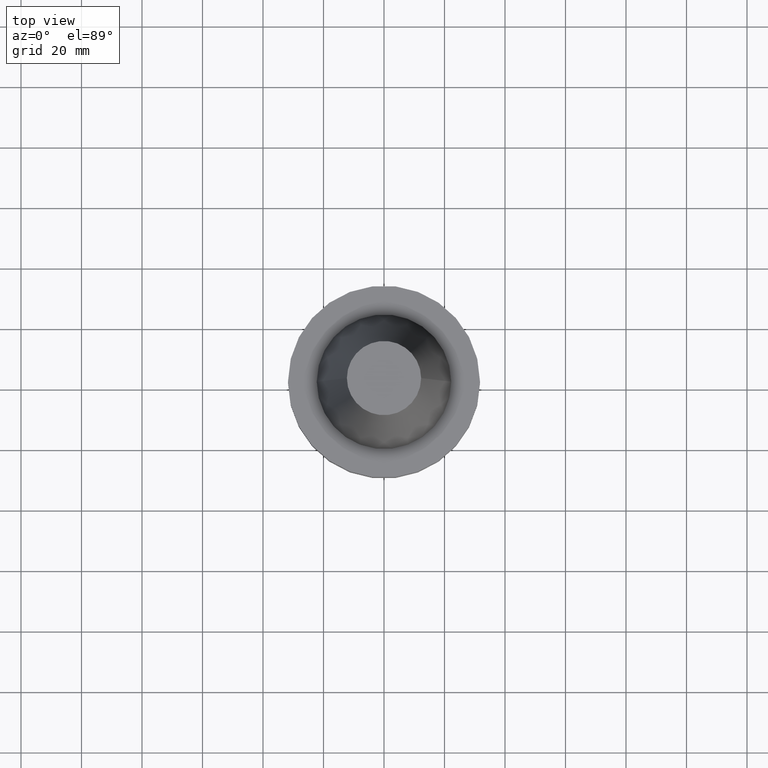
[diagram: clean part render]
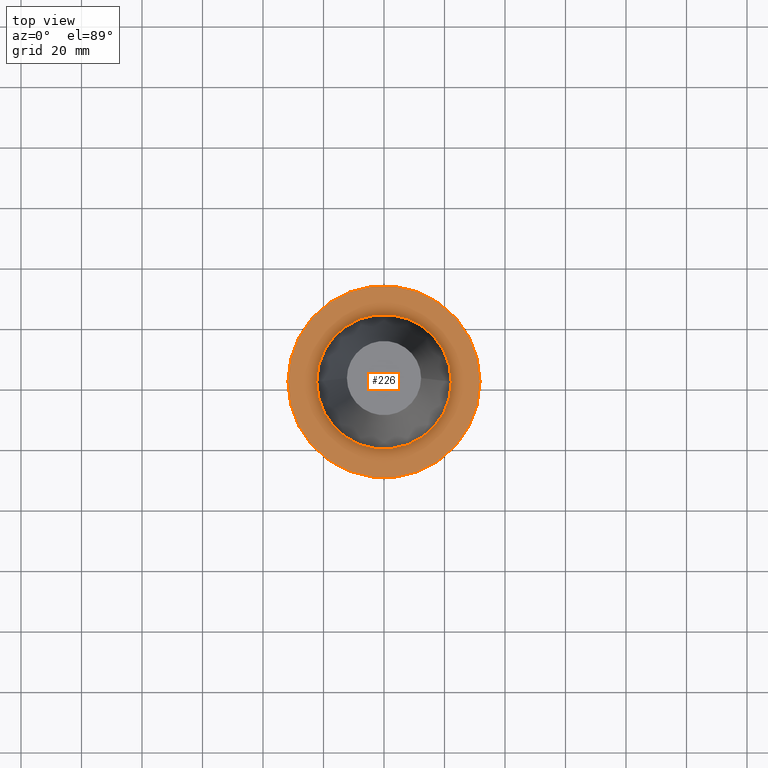
[diagram: same view with one face highlighted and labeled with its STEP entity id]
A machine part, top view. The second image highlights one B-rep face of the part: STEP entity #226.
In plain terms, the highlighted planar face has unit normal (0, 0, -1).
Its self-contained STEP definition (entity closure, byte-faithful):
#7 = CIRCLE ( 'NONE', #724, 31.75000000000000000 ) ;
#30 = VERTEX_POINT ( 'NONE', #948 ) ;
#39 = DIRECTION ( 'NONE',  ( -0.000000000000000000, -0.000000000000000000, 1.000000000000000000 ) ) ;
#40 = CIRCLE ( 'NONE', #435, 22.22500000000000142 ) ;
#41 = ORIENTED_EDGE ( 'NONE', *, *, #348, .F. ) ;
#50 = FACE_OUTER_BOUND ( 'NONE', #142, .T. ) ;
#54 = CARTESIAN_POINT ( 'NONE',  ( 0.000000000000000000, 0.000000000000000000, -1.000000000000000888 ) ) ;
#58 = EDGE_CURVE ( 'NONE', #180, #895, #40, .T. ) ;
#64 = DIRECTION ( 'NONE',  ( -0.000000000000000000, -0.000000000000000000, 1.000000000000000000 ) ) ;
#81 = AXIS2_PLACEMENT_3D ( 'NONE', #681, #931, #852 ) ;
#87 = VERTEX_POINT ( 'NONE', #189 ) ;
#129 = AXIS2_PLACEMENT_3D ( 'NONE', #926, #64, #329 ) ;
#142 = EDGE_LOOP ( 'NONE', ( #923, #147 ) ) ;
#147 = ORIENTED_EDGE ( 'NONE', *, *, #616, .T. ) ;
#180 = VERTEX_POINT ( 'NONE', #660 ) ;
#189 = CARTESIAN_POINT ( 'NONE',  ( -31.75000000000000000, 3.888253587292846476E-15, -1.000000000000000888 ) ) ;
#209 = EDGE_LOOP ( 'NONE', ( #41, #371 ) ) ;
#222 = FACE_BOUND ( 'NONE', #209, .T. ) ;
#226 = ADVANCED_FACE ( 'NONE', ( #222, #50 ), #238, .F. ) ;
#238 = PLANE ( 'NONE',  #260 ) ;
#260 = AXIS2_PLACEMENT_3D ( 'NONE', #1069, #649, #325 ) ;
#280 = EDGE_CURVE ( 'NONE', #30, #87, #7, .T. ) ;
#325 = DIRECTION ( 'NONE',  ( -1.000000000000000000, 0.000000000000000000, -0.000000000000000000 ) ) ;
#329 = DIRECTION ( 'NONE',  ( 1.000000000000000000, 0.000000000000000000, 0.000000000000000000 ) ) ;
#332 = CIRCLE ( 'NONE', #129, 22.22500000000000142 ) ;
#348 = EDGE_CURVE ( 'NONE', #895, #180, #332, .T. ) ;
#371 = ORIENTED_EDGE ( 'NONE', *, *, #58, .F. ) ;
#400 = DIRECTION ( 'NONE',  ( -0.000000000000000000, -0.000000000000000000, 1.000000000000000000 ) ) ;
#411 = DIRECTION ( 'NONE',  ( 1.000000000000000000, 0.000000000000000000, 0.000000000000000000 ) ) ;
#435 = AXIS2_PLACEMENT_3D ( 'NONE', #705, #39, #722 ) ;
#616 = EDGE_CURVE ( 'NONE', #87, #30, #728, .T. ) ;
#649 = DIRECTION ( 'NONE',  ( 0.000000000000000000, 0.000000000000000000, -1.000000000000000000 ) ) ;
#660 = CARTESIAN_POINT ( 'NONE',  ( -22.22500000000000142, 2.721777511104992849E-15, -1.000000000000000888 ) ) ;
#681 = CARTESIAN_POINT ( 'NONE',  ( 0.000000000000000000, 0.000000000000000000, -1.000000000000000888 ) ) ;
#705 = CARTESIAN_POINT ( 'NONE',  ( 0.000000000000000000, 0.000000000000000000, -1.000000000000000888 ) ) ;
#722 = DIRECTION ( 'NONE',  ( 1.000000000000000000, 0.000000000000000000, 0.000000000000000000 ) ) ;
#724 = AXIS2_PLACEMENT_3D ( 'NONE', #54, #400, #411 ) ;
#728 = CIRCLE ( 'NONE', #81, 31.75000000000000000 ) ;
#852 = DIRECTION ( 'NONE',  ( 1.000000000000000000, 0.000000000000000000, 0.000000000000000000 ) ) ;
#895 = VERTEX_POINT ( 'NONE', #986 ) ;
#923 = ORIENTED_EDGE ( 'NONE', *, *, #280, .T. ) ;
#926 = CARTESIAN_POINT ( 'NONE',  ( 0.000000000000000000, 0.000000000000000000, -1.000000000000000888 ) ) ;
#931 = DIRECTION ( 'NONE',  ( -0.000000000000000000, -0.000000000000000000, 1.000000000000000000 ) ) ;
#948 = CARTESIAN_POINT ( 'NONE',  ( 31.75000000000000000, 0.000000000000000000, -1.000000000000000888 ) ) ;
#986 = CARTESIAN_POINT ( 'NONE',  ( 22.22500000000000142, 0.000000000000000000, -1.000000000000000888 ) ) ;
#1069 = CARTESIAN_POINT ( 'NONE',  ( 0.000000000000000000, 31.75000000000000000, -0.9999999999999995559 ) ) ;